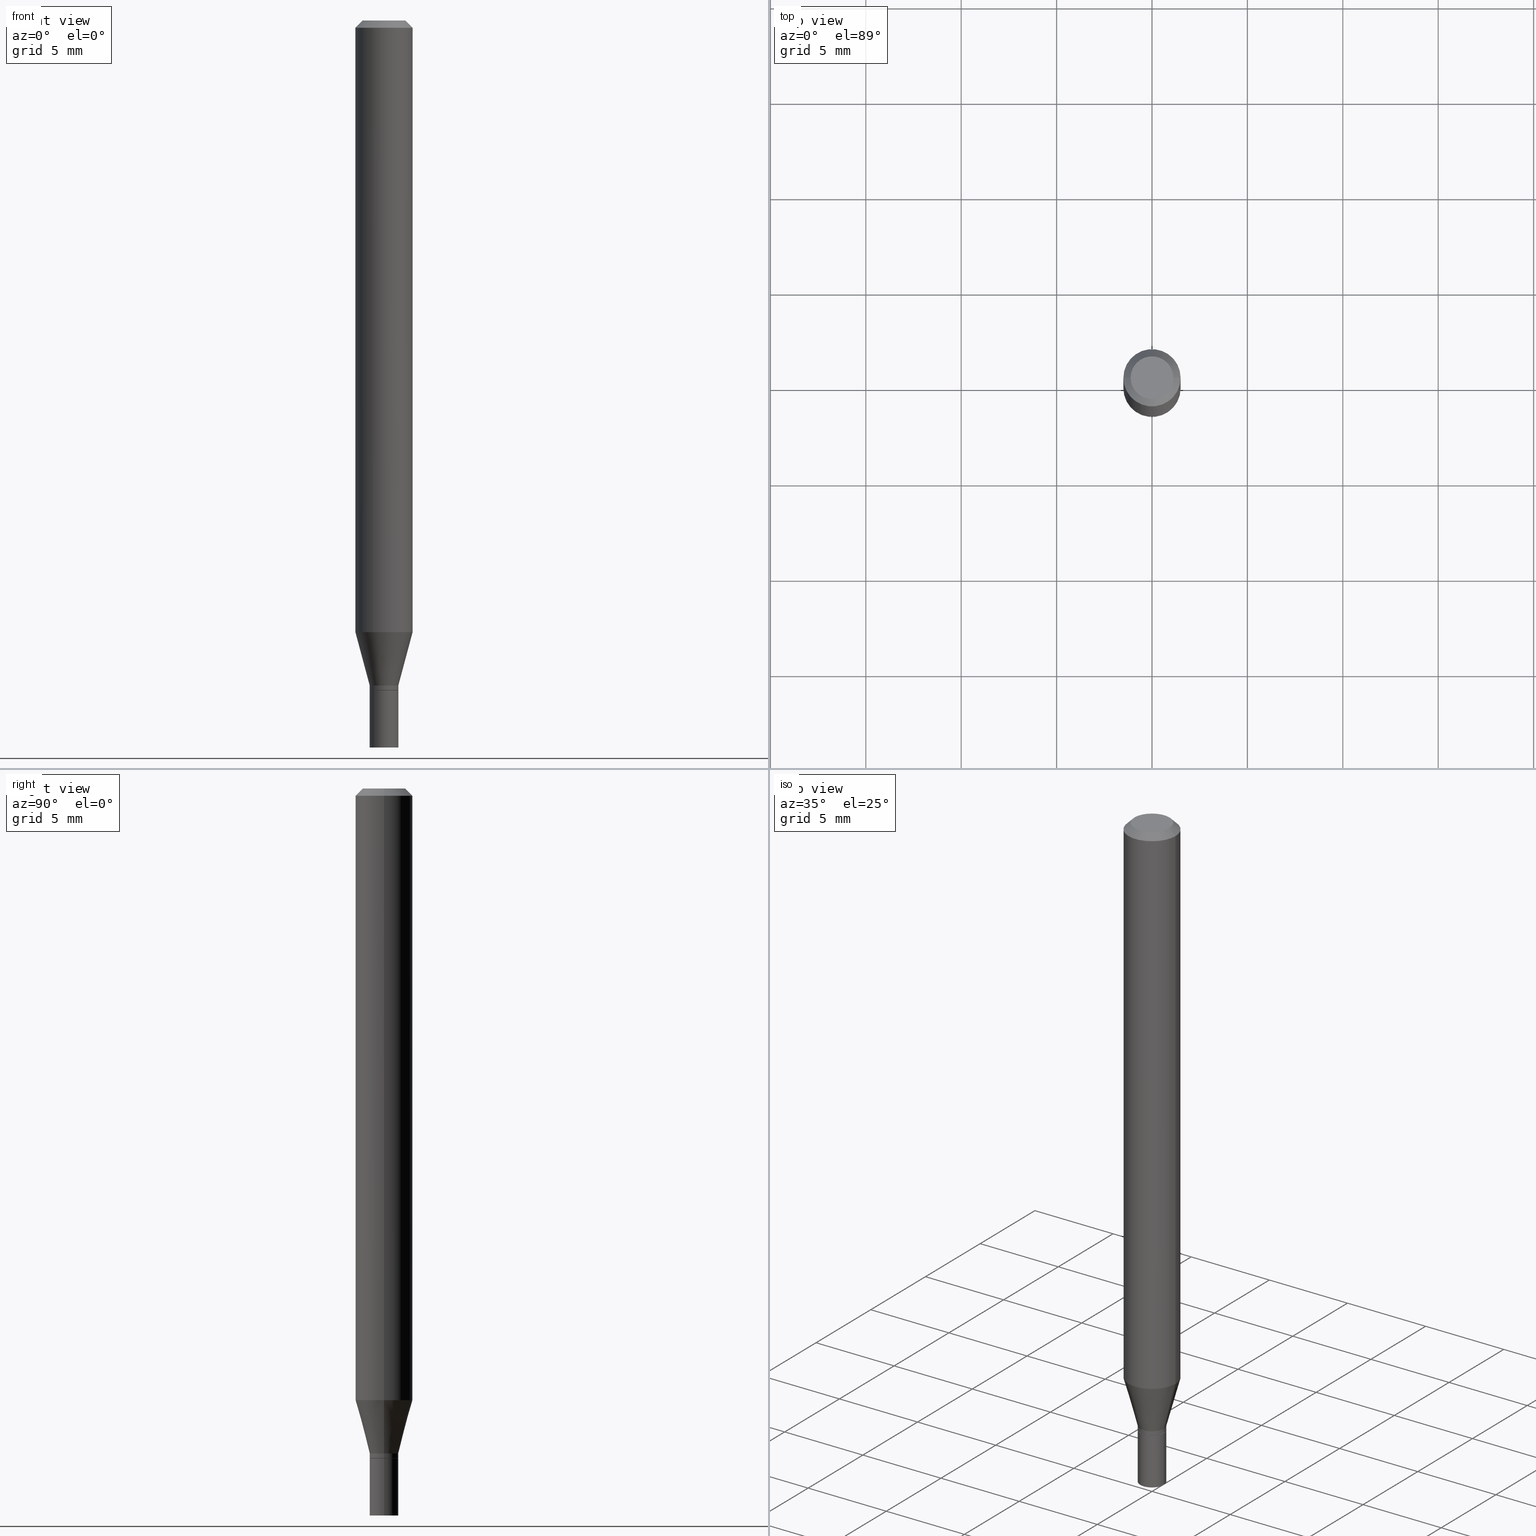
[diagram: canonical four-view strip — front | top / right | iso, engineering-drawing reading convention]
A machine part, canonical four-view strip (front | top / right | iso — engineering-drawing reading convention). The complete STEP part file that produces these views, byte-faithful:
ISO-10303-21;
HEADER;
FILE_DESCRIPTION (( 'STEP AP203' ),
    '1' );
FILE_NAME ('49158.STEP',
    '2024-03-12T19:59:11',
    ( '' ),
    ( '' ),
    'SwSTEP 2.0',
    'SolidWorks 2023',
    '' );
FILE_SCHEMA (( 'CONFIG_CONTROL_DESIGN' ));
ENDSEC;

DATA;
#1 = DIRECTION ( 'NONE',  ( -2.438088387897960049E-29, 3.491481338843145188E-15, 1.000000000000000000 ) ) ;
#2 = VERTEX_POINT ( 'NONE', #13 ) ;
#3 = CARTESIAN_POINT ( 'NONE',  ( 3.378170608864148213E-29, -4.823132321477921753E-15, -1.381400000000000183 ) ) ;
#4 = DIRECTION ( 'NONE',  ( -2.445468806185136597E-29, 3.491481338843145583E-15, 1.000000000000000000 ) ) ;
#5 = ORIENTED_EDGE ( 'NONE', *, *, #70, .T. ) ;
#6 = CALENDAR_DATE ( 2024, 12, 3 ) ;
#7 = DIRECTION ( 'NONE',  ( 1.000000000000000000, -6.982962677686281699E-15, 0.000000000000000000 ) ) ;
#8 = APPROVAL_ROLE ( '' ) ;
#9 = CARTESIAN_POINT ( 'NONE',  ( 3.379393343267239894E-29, -4.824878062147343257E-15, -1.381900000000000128 ) ) ;
#10 = ORIENTED_EDGE ( 'NONE', *, *, #68, .F. ) ;
#11 = CARTESIAN_POINT ( 'NONE',  ( 0.02904999999999999596, -5.027733127934129860E-15, -1.381900000000000128 ) ) ;
#12 = EDGE_CURVE ( 'NONE', #414, #122, #199, .T. ) ;
#13 = CARTESIAN_POINT ( 'NONE',  ( -0.02904999999999999596, -4.615816170234923596E-15, -1.381900000000000128 ) ) ;
#14 = ORIENTED_EDGE ( 'NONE', *, *, #361, .F. ) ;
#15 = DIRECTION ( 'NONE',  ( -2.445468806185136877E-29, 3.491481338843145188E-15, 1.000000000000000000 ) ) ;
#16 = PERSON ( 'UNSPECIFIED', 'UNSPECIFIED', 'UNSPECIFIED', ('UNSPECIFIED'), ('UNSPECIFIED'), ('UNSPECIFIED') ) ;
#17 = EDGE_CURVE ( 'NONE', #244, #338, #306, .T. ) ;
#18 = CONICAL_SURFACE ( 'NONE', #39, 0.02904999999999999596, 0.7853981633974739252 ) ;
#19 = LINE ( 'NONE', #339, #189 ) ;
#20 = EDGE_CURVE ( 'NONE', #338, #244, #374, .T. ) ;
#21 = CARTESIAN_POINT ( 'NONE',  ( 0.05905000000000000526, -4.123439461173741313E-16, 2.879382386107500571E-30 ) ) ;
#22 = ORIENTED_EDGE ( 'NONE', *, *, #302, .T. ) ;
#23 = CARTESIAN_POINT ( 'NONE',  ( 3.355183202086007133E-29, -4.790312396892795908E-15, -1.372000000000000108 ) ) ;
#24 = AXIS2_PLACEMENT_3D ( 'NONE', #23, #62, #420 ) ;
#25 = CARTESIAN_POINT ( 'NONE',  ( 0.05904999999999999832, -4.818259963378055761E-15, -1.261904501176718707 ) ) ;
#26 = APPROVAL_PERSON_ORGANIZATION ( #184, #369, #8 ) ;
#27 = EDGE_LOOP ( 'NONE', ( #284, #233, #463, #364 ) ) ;
#28 = CARTESIAN_POINT ( 'NONE',  ( -0.02954999999999999988, -4.821084656788921754E-15, -1.381900000000000128 ) ) ;
#29 = EDGE_CURVE ( 'NONE', #288, #414, #112, .T. ) ;
#30 = APPROVAL ( #362, 'UNSPECIFIED' ) ;
#31 = CIRCLE ( 'NONE', #287, 0.02954999999999992008 ) ;
#32 = COORDINATED_UNIVERSAL_TIME_OFFSET ( 5, 0, .BEHIND. ) ;
#33 = CC_DESIGN_PERSON_AND_ORGANIZATION_ASSIGNMENT ( #147, #37, ( #238 ) ) ;
#34 = ORIENTED_EDGE ( 'NONE', *, *, #295, .F. ) ;
#35 = DATE_TIME_ROLE ( 'classification_date' ) ;
#36 = ORIENTED_EDGE ( 'NONE', *, *, #380, .F. ) ;
#37 = PERSON_AND_ORGANIZATION_ROLE ( 'classification_officer' ) ;
#38 = EDGE_LOOP ( 'NONE', ( #357, #174, #75, #422 ) ) ;
#39 = AXIS2_PLACEMENT_3D ( 'NONE', #180, #455, #136 ) ;
#40 = APPROVAL_ROLE ( '' ) ;
#41 = CC_DESIGN_APPROVAL ( #30, ( #430 ) ) ;
#42 = DIRECTION ( 'NONE',  ( 2.438088387897960049E-29, -3.491481338843145188E-15, -1.000000000000000000 ) ) ;
#43 = VERTEX_POINT ( 'NONE', #227 ) ;
#44 = DIRECTION ( 'NONE',  ( -2.445468806185136877E-29, 3.491481338843145188E-15, 1.000000000000000000 ) ) ;
#45 = ADVANCED_FACE ( 'NONE', ( #297 ), #222, .T. ) ;
#46 = PERSON_AND_ORGANIZATION_ROLE ( 'creator' ) ;
#47 = CARTESIAN_POINT ( 'NONE',  ( -8.641182519006289553E-45, 1.233731848647591164E-30, 3.533548453838711334E-16 ) ) ;
#48 = CARTESIAN_POINT ( 'NONE',  ( -0.02954999999999991661, -4.283343775135014344E-15, -1.372000000000000108 ) ) ;
#49 = CARTESIAN_POINT ( 'NONE',  ( -0.05904999999999999832, -3.986340531794342137E-15, -1.261904501176718707 ) ) ;
#50 = DIRECTION ( 'NONE',  ( -2.445468806185136597E-29, 3.491481338843145583E-15, 1.000000000000000000 ) ) ;
#51 = EDGE_CURVE ( 'NONE', #355, #392, #243, .T. ) ;
#52 = ORIENTED_EDGE ( 'NONE', *, *, #380, .T. ) ;
#53 = DIRECTION ( 'NONE',  ( -2.445468806185136597E-29, 3.491481338843145583E-15, 1.000000000000000000 ) ) ;
#54 = CARTESIAN_POINT ( 'NONE',  ( -0.04404999999999999888, 3.337856159934041534E-16, 3.533548453838689148E-16 ) ) ;
#55 = EDGE_CURVE ( 'NONE', #146, #2, #177, .T. ) ;
#56 = CC_DESIGN_PERSON_AND_ORGANIZATION_ASSIGNMENT ( #286, #114, ( #58 ) ) ;
#57 = CONICAL_SURFACE ( 'NONE', #316, 0.02904999999999999596, 0.7853981633974739252 ) ;
#58 = PRODUCT_DEFINITION_FORMATION_WITH_SPECIFIED_SOURCE ( 'ANY', '', #88, .NOT_KNOWN. ) ;
#59 = DIRECTION ( 'NONE',  ( -2.445468806185136597E-29, 3.491481338843145583E-15, 1.000000000000000000 ) ) ;
#60 = ORIENTED_EDGE ( 'NONE', *, *, #280, .F. ) ;
#61 = PLANE ( 'NONE',  #176 ) ;
#62 = DIRECTION ( 'NONE',  ( -2.445468806185136597E-29, 3.491481338843145583E-15, 1.000000000000000000 ) ) ;
#63 = EDGE_LOOP ( 'NONE', ( #248, #34 ) ) ;
#64 = VECTOR ( 'NONE', #140, 39.37007874015748143 ) ;
#65 = LOCAL_TIME ( 15, 59, 11.00000000000000000, #109 ) ;
#66 = ORIENTED_EDGE ( 'NONE', *, *, #70, .F. ) ;
#67 = ORIENTED_EDGE ( 'NONE', *, *, #405, .T. ) ;
#68 = EDGE_CURVE ( 'NONE', #43, #241, #365, .T. ) ;
#69 = DIRECTION ( 'NONE',  ( 1.000000000000000000, -6.982962677686261977E-15, 0.000000000000000000 ) ) ;
#70 = EDGE_CURVE ( 'NONE', #43, #304, #465, .T. ) ;
#71 = AXIS2_PLACEMENT_3D ( 'NONE', #101, #131, #94 ) ;
#72 = EDGE_LOOP ( 'NONE', ( #211, #451, #106, #153 ) ) ;
#73 = LENGTH_MEASURE_WITH_UNIT ( LENGTH_MEASURE( 0.02539999999999999897 ), #120 );
#74 = ORIENTED_EDGE ( 'NONE', *, *, #17, .T. ) ;
#75 = ORIENTED_EDGE ( 'NONE', *, *, #427, .F. ) ;
#76 = APPLICATION_PROTOCOL_DEFINITION ( 'international standard', 'config_control_design', 1994, #160 ) ;
#77 = DIRECTION ( 'NONE',  ( -2.445468806185136597E-29, 3.491481338843145583E-15, 1.000000000000000000 ) ) ;
#78 = ADVANCED_BREP_SHAPE_REPRESENTATION ( '49158', ( #249, #102, #230 ), #232 ) ;
#79 = DIMENSIONAL_EXPONENTS ( 1.000000000000000000, 0.000000000000000000, 0.000000000000000000, 0.000000000000000000, 0.000000000000000000, 0.000000000000000000, 0.000000000000000000 ) ;
#80 = CONICAL_SURFACE ( 'NONE', #144, 0.02954999999999991661, 0.2617993877991512952 ) ;
#81 = DATE_AND_TIME ( #151, #65 ) ;
#82 = CARTESIAN_POINT ( 'NONE',  ( -0.02954999999999999988, 2.099653784171096041E-16, -1.453545319170324550E-30 ) ) ;
#83 = DIRECTION ( 'NONE',  ( 0.7071067811865656694, -2.468850131082446387E-15, 0.7071067811865294761 ) ) ;
#84 = ORIENTED_EDGE ( 'NONE', *, *, #198, .F. ) ;
#85 = DIRECTION ( 'NONE',  ( -2.445468806185136597E-29, 3.491481338843145583E-15, 1.000000000000000000 ) ) ;
#86 = ADVANCED_FACE ( 'NONE', ( #107 ), #18, .T. ) ;
#87 = DIRECTION ( 'NONE',  ( 1.000000000000000000, -6.982962677686261977E-15, 0.000000000000000000 ) ) ;
#88 = PRODUCT ( '49158', '49158', '', ( #212 ) ) ;
#89 = CIRCLE ( 'NONE', #372, 0.02954999999999999988 ) ;
#90 = AXIS2_PLACEMENT_3D ( 'NONE', #47, #368, #269 ) ;
#91 = VECTOR ( 'NONE', #299, 39.37007874015748854 ) ;
#92 = CARTESIAN_POINT ( 'NONE',  ( 0.02954999999999999988, -5.443568555390347787E-15, -1.500000000000000222 ) ) ;
#93 = ORIENTED_EDGE ( 'NONE', *, *, #68, .T. ) ;
#94 = DIRECTION ( 'NONE',  ( 1.000000000000000000, -6.982962677686273021E-15, 0.000000000000000000 ) ) ;
#95 = DIRECTION ( 'NONE',  ( -2.438088387897960049E-29, 3.491481338843145188E-15, 1.000000000000000000 ) ) ;
#96 = ORIENTED_EDGE ( 'NONE', *, *, #108, .F. ) ;
#97 = CLOSED_SHELL ( 'NONE', ( #352, #86, #45, #281, #132, #276, #461, #116, #215, #191, #207, #216 ) ) ;
#98 = AXIS2_PLACEMENT_3D ( 'NONE', #411, #363, #7 ) ;
#99 = DIRECTION ( 'NONE',  ( -2.445468806185136597E-29, 3.491481338843145583E-15, 1.000000000000000000 ) ) ;
#100 = ORIENTED_EDGE ( 'NONE', *, *, #385, .T. ) ;
#101 = CARTESIAN_POINT ( 'NONE',  ( 3.085948094012280841E-29, -4.405916017260681630E-15, -1.261904501176718707 ) ) ;
#102 = MANIFOLD_SOLID_BREP ( 'Body-Move/Copy2[2]', #97 ) ;
#103 = PRODUCT_DEFINITION_SHAPE ( 'NONE', 'NONE',  #430 ) ;
#104 = ORIENTED_EDGE ( 'NONE', *, *, #205, .T. ) ;
#105 = CARTESIAN_POINT ( 'NONE',  ( 0.02954999999999999988, -5.031224609272972078E-15, -1.381900000000000128 ) ) ;
#106 = ORIENTED_EDGE ( 'NONE', *, *, #351, .T. ) ;
#107 = FACE_OUTER_BOUND ( 'NONE', #27, .T. ) ;
#108 = EDGE_CURVE ( 'NONE', #2, #43, #273, .T. ) ;
#109 = COORDINATED_UNIVERSAL_TIME_OFFSET ( 5, 0, .BEHIND. ) ;
#110 = APPROVAL_PERSON_ORGANIZATION ( #394, #30, #40 ) ;
#111 = ORIENTED_EDGE ( 'NONE', *, *, #293, .T. ) ;
#112 = CIRCLE ( 'NONE', #428, 0.02954999999999999988 ) ;
#113 = VECTOR ( 'NONE', #141, 39.37007874015748143 ) ;
#114 = PERSON_AND_ORGANIZATION_ROLE ( 'design_supplier' ) ;
#115 = ORIENTED_EDGE ( 'NONE', *, *, #139, .F. ) ;
#116 = ADVANCED_FACE ( 'NONE', ( #260 ), #170, .T. ) ;
#117 = CARTESIAN_POINT ( 'NONE',  ( 0.02954999999999992008, -2.063465471256286244E-16, 1.440910237247695041E-30 ) ) ;
#118 = CC_DESIGN_PERSON_AND_ORGANIZATION_ASSIGNMENT ( #252, #424, ( #88 ) ) ;
#119 = ORIENTED_EDGE ( 'NONE', *, *, #51, .T. ) ;
#120 =( LENGTH_UNIT ( ) NAMED_UNIT ( * ) SI_UNIT ( $, .METRE. ) );
#121 = CARTESIAN_POINT ( 'NONE',  ( 3.379393343267239894E-29, -4.824878062147343257E-15, -1.381900000000000128 ) ) ;
#122 = VERTEX_POINT ( 'NONE', #28 ) ;
#123 = APPROVAL_PERSON_ORGANIZATION ( #353, #246, #437 ) ;
#124 = DATE_AND_TIME ( #6, #182 ) ;
#125 = CARTESIAN_POINT ( 'NONE',  ( 0.02954999999999991661, -4.996658944018425519E-15, -1.372000000000000108 ) ) ;
#126 = CARTESIAN_POINT ( 'NONE',  ( 3.668203209277705088E-31, -5.237222008264718399E-17, -0.01499999999999999944 ) ) ;
#127 = DIRECTION ( 'NONE',  ( 2.438088387897960049E-29, -3.491481338843145188E-15, -1.000000000000000000 ) ) ;
#128 = FACE_OUTER_BOUND ( 'NONE', #296, .T. ) ;
#129 = CONICAL_SURFACE ( 'NONE', #98, 0.02954999999999991661, 0.2617993877991512952 ) ;
#130 = EDGE_LOOP ( 'NONE', ( #377, #315, #425, #149 ) ) ;
#131 = DIRECTION ( 'NONE',  ( -2.445468806185136597E-29, 3.491481338843145583E-15, 1.000000000000000000 ) ) ;
#132 = ADVANCED_FACE ( 'NONE', ( #335 ), #80, .T. ) ;
#133 = CARTESIAN_POINT ( 'NONE',  ( 0.05905000000000001914, -4.647161662000214077E-16, -0.01499999999999999944 ) ) ;
#134 = COORDINATED_UNIVERSAL_TIME_OFFSET ( 5, 0, .BEHIND. ) ;
#135 = CARTESIAN_POINT ( 'NONE',  ( 3.378170608864148213E-29, -4.823132321477921753E-15, -1.381400000000000183 ) ) ;
#136 = DIRECTION ( 'NONE',  ( 1.000000000000000000, -6.982962677686278543E-15, 0.000000000000000000 ) ) ;
#137 = CARTESIAN_POINT ( 'NONE',  ( 3.576687321579069994E-29, -5.368277968210015545E-15, -1.500000000000000222 ) ) ;
#138 = EDGE_LOOP ( 'NONE', ( #462, #100 ) ) ;
#139 = EDGE_CURVE ( 'NONE', #221, #360, #423, .T. ) ;
#140 = DIRECTION ( 'NONE',  ( -0.7071067811865656694, 7.493145998870420424E-15, 0.7071067811865294761 ) ) ;
#141 = DIRECTION ( 'NONE',  ( -0.7071067811865396902, 2.468850131082174625E-15, -0.7071067811865553443 ) ) ;
#142 = DIRECTION ( 'NONE',  ( 1.000000000000000000, -6.982962677686280910E-15, 0.000000000000000000 ) ) ;
#143 = AXIS2_PLACEMENT_3D ( 'NONE', #290, #42, #161 ) ;
#144 = AXIS2_PLACEMENT_3D ( 'NONE', #169, #190, #375 ) ;
#145 = CC_DESIGN_PERSON_AND_ORGANIZATION_ASSIGNMENT ( #366, #46, ( #430 ) ) ;
#146 = VERTEX_POINT ( 'NONE', #234 ) ;
#147 = PERSON_AND_ORGANIZATION ( #16, #346 ) ;
#148 = CIRCLE ( 'NONE', #348, 0.02954999999999999988 ) ;
#149 = ORIENTED_EDGE ( 'NONE', *, *, #450, .F. ) ;
#150 = AXIS2_PLACEMENT_3D ( 'NONE', #229, #85, #262 ) ;
#151 = CALENDAR_DATE ( 2024, 12, 3 ) ;
#152 = LINE ( 'NONE', #231, #91 ) ;
#153 = ORIENTED_EDGE ( 'NONE', *, *, #385, .F. ) ;
#154 = CARTESIAN_POINT ( 'NONE',  ( 0.000000000000000000, 0.000000000000000000, 0.000000000000000000 ) ) ;
#155 = PLANE ( 'NONE',  #143 ) ;
#156 = ORIENTED_EDGE ( 'NONE', *, *, #433, .F. ) ;
#157 = CARTESIAN_POINT ( 'NONE',  ( 3.379393343267239894E-29, -4.824878062147343257E-15, -1.381900000000000128 ) ) ;
#158 = DATE_TIME_ROLE ( 'creation_date' ) ;
#159 = ADVANCED_FACE ( 'NONE', ( #328 ), #155, .F. ) ;
#160 = APPLICATION_CONTEXT ( 'configuration controlled 3d designs of mechanical parts and assemblies' ) ;
#161 = DIRECTION ( 'NONE',  ( -1.000000000000000000, 6.982962677686265922E-15, -4.876176775795935793E-29 ) ) ;
#162 = CC_DESIGN_APPROVAL ( #369, ( #238 ) ) ;
#163 = CALENDAR_DATE ( 2024, 12, 3 ) ;
#164 = CARTESIAN_POINT ( 'NONE',  ( 0.04404999999999999888, -3.798447818264455642E-16, 3.533548453838735986E-16 ) ) ;
#165 = ORIENTED_EDGE ( 'NONE', *, *, #29, .T. ) ;
#166 = DIRECTION ( 'NONE',  ( -2.445468806185136877E-29, 3.491481338843145188E-15, 1.000000000000000000 ) ) ;
#167 = ORIENTED_EDGE ( 'NONE', *, *, #415, .F. ) ;
#168 = FACE_OUTER_BOUND ( 'NONE', #72, .T. ) ;
#169 = CARTESIAN_POINT ( 'NONE',  ( 3.355183202086007133E-29, -4.790312396892795908E-15, -1.372000000000000108 ) ) ;
#170 = CONICAL_SURFACE ( 'NONE', #342, 0.05905000000000001914, 0.7853981633974372878 ) ;
#171 = CARTESIAN_POINT ( 'NONE',  ( 0.02954999999999992008, -5.029478868603550575E-15, -1.381400000000000183 ) ) ;
#172 = DATE_AND_TIME ( #163, #354 ) ;
#173 = DIRECTION ( 'NONE',  ( -2.445468806185136877E-29, 3.491481338843145188E-15, 1.000000000000000000 ) ) ;
#174 = ORIENTED_EDGE ( 'NONE', *, *, #361, .T. ) ;
#175 = DIRECTION ( 'NONE',  ( 0.7071067811865396902, -7.319954787623229224E-15, -0.7071067811865553443 ) ) ;
#176 = AXIS2_PLACEMENT_3D ( 'NONE', #137, #95, #270 ) ;
#177 = CIRCLE ( 'NONE', #324, 0.02904999999999999596 ) ;
#178 = VECTOR ( 'NONE', #166, 39.37007874015748143 ) ;
#179 = DIRECTION ( 'NONE',  ( -2.445468806185136877E-29, 3.491481338843145188E-15, 1.000000000000000000 ) ) ;
#180 = CARTESIAN_POINT ( 'NONE',  ( 3.379393343267239894E-29, -4.824878062147343257E-15, -1.381900000000000128 ) ) ;
#181 = ORIENTED_EDGE ( 'NONE', *, *, #450, .T. ) ;
#182 = LOCAL_TIME ( 15, 59, 11.00000000000000000, #32 ) ;
#183 =( CONVERSION_BASED_UNIT ( 'INCH', #73 ) LENGTH_UNIT ( ) NAMED_UNIT ( #79 ) );
#184 = PERSON_AND_ORGANIZATION ( #16, #346 ) ;
#185 = EDGE_LOOP ( 'NONE', ( #165, #219, #84, #349 ) ) ;
#186 = APPROVAL_STATUS ( 'not_yet_approved' ) ;
#187 = ORIENTED_EDGE ( 'NONE', *, *, #17, .F. ) ;
#188 = AXIS2_PLACEMENT_3D ( 'NONE', #126, #436, #259 ) ;
#189 = VECTOR ( 'NONE', #15, 39.37007874015748143 ) ;
#190 = DIRECTION ( 'NONE',  ( -2.445468806185136597E-29, 3.491481338843145583E-15, 1.000000000000000000 ) ) ;
#191 = ADVANCED_FACE ( 'NONE', ( #194 ), #439, .F. ) ;
#192 = FACE_OUTER_BOUND ( 'NONE', #185, .T. ) ;
#193 = CARTESIAN_POINT ( 'NONE',  ( 3.668203209277705088E-31, -5.237222008264718399E-17, -0.01499999999999999944 ) ) ;
#194 = FACE_OUTER_BOUND ( 'NONE', #314, .T. ) ;
#195 = VECTOR ( 'NONE', #343, 39.37007874015748854 ) ;
#196 = FACE_OUTER_BOUND ( 'NONE', #326, .T. ) ;
#197 = DIRECTION ( 'NONE',  ( -2.445468806185136597E-29, 3.491481338843145583E-15, 1.000000000000000000 ) ) ;
#198 = EDGE_CURVE ( 'NONE', #321, #122, #201, .T. ) ;
#199 = LINE ( 'NONE', #82, #410 ) ;
#200 = DIRECTION ( 'NONE',  ( 1.000000000000000000, -6.982962677686278543E-15, 0.000000000000000000 ) ) ;
#201 = CIRCLE ( 'NONE', #382, 0.02954999999999999988 ) ;
#202 = APPROVAL_DATE_TIME ( #172, #369 ) ;
#203 = CIRCLE ( 'NONE', #391, 0.05905000000000001914 ) ;
#204 = DIRECTION ( 'NONE',  ( 1.000000000000000000, -6.982962677686280910E-15, 0.000000000000000000 ) ) ;
#205 = EDGE_CURVE ( 'NONE', #146, #304, #434, .T. ) ;
#206 = DIRECTION ( 'NONE',  ( -2.445468806185136597E-29, 3.491481338843145583E-15, 1.000000000000000000 ) ) ;
#207 = ADVANCED_FACE ( 'NONE', ( #294 ), #57, .T. ) ;
#208 = LINE ( 'NONE', #345, #317 ) ;
#209 = VECTOR ( 'NONE', #175, 39.37007874015748143 ) ;
#210 = ORIENTED_EDGE ( 'NONE', *, *, #433, .T. ) ;
#211 = ORIENTED_EDGE ( 'NONE', *, *, #12, .F. ) ;
#212 = MECHANICAL_CONTEXT ( 'NONE', #160, 'mechanical' ) ;
#213 = CIRCLE ( 'NONE', #24, 0.02954999999999991661 ) ;
#214 = DATE_AND_TIME ( #330, #285 ) ;
#215 = ADVANCED_FACE ( 'NONE', ( #196 ), #226, .F. ) ;
#216 = ADVANCED_FACE ( 'NONE', ( #128 ), #407, .T. ) ;
#217 = DIRECTION ( 'NONE',  ( -2.445468806185136597E-29, 3.491481338843145583E-15, 1.000000000000000000 ) ) ;
#218 = CARTESIAN_POINT ( 'NONE',  ( 3.668203209277705088E-31, -5.237222008264718399E-17, -0.01499999999999999944 ) ) ;
#219 = ORIENTED_EDGE ( 'NONE', *, *, #12, .T. ) ;
#220 = DIRECTION ( 'NONE',  ( 1.000000000000000000, -6.982962677686266711E-15, 0.000000000000000000 ) ) ;
#221 = VERTEX_POINT ( 'NONE', #49 ) ;
#222 = CONICAL_SURFACE ( 'NONE', #188, 0.05905000000000001914, 0.7853981633974372878 ) ;
#223 = DIRECTION ( 'NONE',  ( 1.000000000000000000, -6.982962677686278543E-15, 0.000000000000000000 ) ) ;
#224 = APPROVAL_DATE_TIME ( #81, #30 ) ;
#225 = DIRECTION ( 'NONE',  ( -2.445468806185136877E-29, 3.491481338843145188E-15, 1.000000000000000000 ) ) ;
#226 = PLANE ( 'NONE',  #254 ) ;
#227 = CARTESIAN_POINT ( 'NONE',  ( -0.02954999999999992008, -4.613166943060813184E-15, -1.381400000000000183 ) ) ;
#228 = UNCERTAINTY_MEASURE_WITH_UNIT (LENGTH_MEASURE( 1.000000000000000082E-05 ), #183, 'distance_accuracy_value', 'NONE');
#229 = CARTESIAN_POINT ( 'NONE',  ( 0.000000000000000000, 0.000000000000000000, 0.000000000000000000 ) ) ;
#230 = AXIS2_PLACEMENT_3D ( 'NONE', #154, #429, #398 ) ;
#231 = CARTESIAN_POINT ( 'NONE',  ( 0.02954999999999991661, -4.996658944018425519E-15, -1.372000000000000108 ) ) ;
#232 =( GEOMETRIC_REPRESENTATION_CONTEXT ( 3 ) GLOBAL_UNCERTAINTY_ASSIGNED_CONTEXT ( ( #228 ) ) GLOBAL_UNIT_ASSIGNED_CONTEXT ( ( #183, #393, #466 ) ) REPRESENTATION_CONTEXT ( 'NONE', 'WORKASPACE' ) );
#233 = ORIENTED_EDGE ( 'NONE', *, *, #108, .T. ) ;
#234 = CARTESIAN_POINT ( 'NONE',  ( 0.02904999999999999596, -5.027733127934129860E-15, -1.381900000000000128 ) ) ;
#235 = DIRECTION ( 'NONE',  ( 1.000000000000000000, -6.982962677686261977E-15, 0.000000000000000000 ) ) ;
#236 = CYLINDRICAL_SURFACE ( 'NONE', #272, 0.02954999999999999988 ) ;
#237 = AXIS2_PLACEMENT_3D ( 'NONE', #431, #261, #255 ) ;
#238 = SECURITY_CLASSIFICATION ( '', '', #459 ) ;
#239 = CARTESIAN_POINT ( 'NONE',  ( -0.05905000000000002608, -1.809568633205325453E-15, -0.01499999999999999944 ) ) ;
#240 = CYLINDRICAL_SURFACE ( 'NONE', #383, 0.02954999999999992008 ) ;
#241 = VERTEX_POINT ( 'NONE', #48 ) ;
#242 = LINE ( 'NONE', #452, #195 ) ;
#243 = CIRCLE ( 'NONE', #333, 0.05905000000000001914 ) ;
#244 = VERTEX_POINT ( 'NONE', #164 ) ;
#245 = CALENDAR_DATE ( 2024, 12, 3 ) ;
#246 = APPROVAL ( #186, 'UNSPECIFIED' ) ;
#247 = ORIENTED_EDGE ( 'NONE', *, *, #405, .F. ) ;
#248 = ORIENTED_EDGE ( 'NONE', *, *, #29, .F. ) ;
#249 = MANIFOLD_SOLID_BREP ( 'Body-Move/Copy2[1]', #389 ) ;
#250 = DIRECTION ( 'NONE',  ( -2.445468806185136597E-29, 3.491481338843145583E-15, 1.000000000000000000 ) ) ;
#251 = DIRECTION ( 'NONE',  ( -2.445468806185136597E-29, 3.491481338843145583E-15, 1.000000000000000000 ) ) ;
#252 = PERSON_AND_ORGANIZATION ( #16, #346 ) ;
#253 = DIRECTION ( 'NONE',  ( 2.445468806185136597E-29, -3.491481338843145583E-15, -1.000000000000000000 ) ) ;
#254 = AXIS2_PLACEMENT_3D ( 'NONE', #258, #127, #367 ) ;
#255 = DIRECTION ( 'NONE',  ( 1.000000000000000000, -6.982962677686266711E-15, 4.876176775795935232E-29 ) ) ;
#256 = VERTEX_POINT ( 'NONE', #125 ) ;
#257 = APPROVAL_DATE_TIME ( #124, #246 ) ;
#258 = CARTESIAN_POINT ( 'NONE',  ( 3.075995059520799729E-16, 0.04404999999999999888, 2.287766971589501637E-17 ) ) ;
#259 = DIRECTION ( 'NONE',  ( -1.000000000000000000, 6.982962677686266711E-15, 0.000000000000000000 ) ) ;
#260 = FACE_OUTER_BOUND ( 'NONE', #460, .T. ) ;
#261 = DIRECTION ( 'NONE',  ( -2.445468806185136597E-29, 3.491481338843145583E-15, 1.000000000000000000 ) ) ;
#262 = DIRECTION ( 'NONE',  ( 1.000000000000000000, -6.982962677686267499E-15, 4.876176775795936353E-29 ) ) ;
#263 = AXIS2_PLACEMENT_3D ( 'NONE', #3, #292, #142 ) ;
#264 = AXIS2_PLACEMENT_3D ( 'NONE', #388, #417, #384 ) ;
#265 = ORIENTED_EDGE ( 'NONE', *, *, #20, .T. ) ;
#266 = CARTESIAN_POINT ( 'NONE',  ( 0.000000000000000000, 0.000000000000000000, 0.000000000000000000 ) ) ;
#267 = LINE ( 'NONE', #421, #113 ) ;
#268 = ADVANCED_FACE ( 'NONE', ( #192 ), #301, .T. ) ;
#269 = DIRECTION ( 'NONE',  ( 1.000000000000000000, -6.982962677686265922E-15, 4.819687581474398999E-29 ) ) ;
#270 = DIRECTION ( 'NONE',  ( 1.000000000000000000, -6.982962677686265922E-15, 4.876176775795935793E-29 ) ) ;
#271 = DIRECTION ( 'NONE',  ( -1.000000000000000000, 6.982962677686266711E-15, 0.000000000000000000 ) ) ;
#272 = AXIS2_PLACEMENT_3D ( 'NONE', #266, #305, #416 ) ;
#273 = LINE ( 'NONE', #453, #64 ) ;
#274 = CARTESIAN_POINT ( 'NONE',  ( 3.379393343267239894E-29, -4.824878062147343257E-15, -1.381900000000000128 ) ) ;
#275 = DIRECTION ( 'NONE',  ( -2.445468806185136597E-29, 3.491481338843145583E-15, 1.000000000000000000 ) ) ;
#276 = ADVANCED_FACE ( 'NONE', ( #337 ), #129, .T. ) ;
#277 = EDGE_CURVE ( 'NONE', #256, #360, #152, .T. ) ;
#278 = VECTOR ( 'NONE', #44, 39.37007874015748143 ) ;
#279 = ORIENTED_EDGE ( 'NONE', *, *, #139, .T. ) ;
#280 = EDGE_CURVE ( 'NONE', #304, #256, #325, .T. ) ;
#281 = ADVANCED_FACE ( 'NONE', ( #303 ), #441, .T. ) ;
#282 = COORDINATED_UNIVERSAL_TIME_OFFSET ( 5, 0, .BEHIND. ) ;
#283 = EDGE_LOOP ( 'NONE', ( #22, #93, #167, #60 ) ) ;
#284 = ORIENTED_EDGE ( 'NONE', *, *, #55, .T. ) ;
#285 = LOCAL_TIME ( 15, 59, 11.00000000000000000, #298 ) ;
#286 = PERSON_AND_ORGANIZATION ( #16, #346 ) ;
#287 = AXIS2_PLACEMENT_3D ( 'NONE', #135, #99, #204 ) ;
#288 = VERTEX_POINT ( 'NONE', #92 ) ;
#289 = DIRECTION ( 'NONE',  ( -2.445468806185136597E-29, 3.491481338843145583E-15, 1.000000000000000000 ) ) ;
#290 = CARTESIAN_POINT ( 'NONE',  ( 2.063465471256629645E-16, 0.02954999999999517735, -1.381900000000000128 ) ) ;
#291 = EDGE_LOOP ( 'NONE', ( #187, #67, #119, #458 ) ) ;
#292 = DIRECTION ( 'NONE',  ( -2.445468806185136597E-29, 3.491481338843145583E-15, 1.000000000000000000 ) ) ;
#293 = EDGE_CURVE ( 'NONE', #392, #355, #203, .T. ) ;
#294 = FACE_OUTER_BOUND ( 'NONE', #390, .T. ) ;
#295 = EDGE_CURVE ( 'NONE', #414, #288, #89, .T. ) ;
#296 = EDGE_LOOP ( 'NONE', ( #10, #5, #350, #36 ) ) ;
#297 = FACE_OUTER_BOUND ( 'NONE', #291, .T. ) ;
#298 = COORDINATED_UNIVERSAL_TIME_OFFSET ( 5, 0, .BEHIND. ) ;
#299 = DIRECTION ( 'NONE',  ( 0.2588190451025225713, 1.565188264969612304E-15, 0.9659258262890678681 ) ) ;
#300 = LOCAL_TIME ( 15, 59, 11.00000000000000000, #282 ) ;
#301 = CYLINDRICAL_SURFACE ( 'NONE', #376, 0.02954999999999999988 ) ;
#302 = EDGE_CURVE ( 'NONE', #304, #43, #31, .T. ) ;
#303 = FACE_OUTER_BOUND ( 'NONE', #130, .T. ) ;
#304 = VERTEX_POINT ( 'NONE', #171 ) ;
#305 = DIRECTION ( 'NONE',  ( -2.445468806185136597E-29, 3.491481338843145583E-15, 1.000000000000000000 ) ) ;
#306 = CIRCLE ( 'NONE', #90, 0.04404999999999999888 ) ;
#307 = CARTESIAN_POINT ( 'NONE',  ( 3.668203209277704895E-29, -5.237222008264718177E-15, -1.500000000000000222 ) ) ;
#308 = CC_DESIGN_DATE_AND_TIME_ASSIGNMENT ( #214, #158, ( #430 ) ) ;
#309 = FACE_OUTER_BOUND ( 'NONE', #63, .T. ) ;
#310 = CARTESIAN_POINT ( 'NONE',  ( 0.05905000000000001914, -4.574846268510562433E-16, -0.01499999999999999944 ) ) ;
#311 = CIRCLE ( 'NONE', #71, 0.05904999999999999832 ) ;
#312 = DIRECTION ( 'NONE',  ( -2.445468806185136597E-29, 3.491481338843145583E-15, 1.000000000000000000 ) ) ;
#313 = FACE_OUTER_BOUND ( 'NONE', #435, .T. ) ;
#314 = EDGE_LOOP ( 'NONE', ( #432, #156 ) ) ;
#315 = ORIENTED_EDGE ( 'NONE', *, *, #443, .T. ) ;
#316 = AXIS2_PLACEMENT_3D ( 'NONE', #121, #50, #370 ) ;
#317 = VECTOR ( 'NONE', #179, 39.37007874015748143 ) ;
#318 = ADVANCED_FACE ( 'NONE', ( #309 ), #61, .F. ) ;
#319 = ORIENTED_EDGE ( 'NONE', *, *, #20, .F. ) ;
#320 = PERSON_AND_ORGANIZATION_ROLE ( 'creator' ) ;
#321 = VERTEX_POINT ( 'NONE', #105 ) ;
#322 = DIRECTION ( 'NONE',  ( 1.000000000000000000, -6.982962677686267499E-15, 4.876176775795936353E-29 ) ) ;
#323 = ORIENTED_EDGE ( 'NONE', *, *, #293, .F. ) ;
#324 = AXIS2_PLACEMENT_3D ( 'NONE', #157, #251, #223 ) ;
#325 = LINE ( 'NONE', #117, #178 ) ;
#326 = EDGE_LOOP ( 'NONE', ( #265, #74 ) ) ;
#327 = CARTESIAN_POINT ( 'NONE',  ( -0.02954999999999992008, 2.099653784171090371E-16, -1.453545319170320697E-30 ) ) ;
#328 = FACE_OUTER_BOUND ( 'NONE', #138, .T. ) ;
#329 = DIRECTION ( 'NONE',  ( 1.000000000000000000, -6.982962677686266711E-15, 0.000000000000000000 ) ) ;
#330 = CALENDAR_DATE ( 2024, 12, 3 ) ;
#331 = CARTESIAN_POINT ( 'NONE',  ( 0.000000000000000000, 0.000000000000000000, 0.000000000000000000 ) ) ;
#332 = DIRECTION ( 'NONE',  ( -2.445468806185136597E-29, 3.491481338843145583E-15, 1.000000000000000000 ) ) ;
#333 = AXIS2_PLACEMENT_3D ( 'NONE', #193, #332, #329 ) ;
#334 = CARTESIAN_POINT ( 'NONE',  ( 3.085948094012280841E-29, -4.405916017260681630E-15, -1.261904501176718707 ) ) ;
#335 = FACE_OUTER_BOUND ( 'NONE', #38, .T. ) ;
#336 = ORIENTED_EDGE ( 'NONE', *, *, #277, .T. ) ;
#337 = FACE_OUTER_BOUND ( 'NONE', #404, .T. ) ;
#338 = VERTEX_POINT ( 'NONE', #54 ) ;
#339 = CARTESIAN_POINT ( 'NONE',  ( 0.02954999999999999988, -2.063465471256291914E-16, 1.440910237247699070E-30 ) ) ;
#340 = APPLICATION_CONTEXT ( 'configuration controlled 3d designs of mechanical parts and assemblies' ) ;
#341 = LINE ( 'NONE', #21, #464 ) ;
#342 = AXIS2_PLACEMENT_3D ( 'NONE', #218, #253, #271 ) ;
#343 = DIRECTION ( 'NONE',  ( -0.2588190451025225713, 5.211531920934557353E-15, 0.9659258262890678681 ) ) ;
#344 = LINE ( 'NONE', #310, #209 ) ;
#345 = CARTESIAN_POINT ( 'NONE',  ( -0.05905000000000000526, 4.195754854663391971E-16, -2.904631170795522242E-30 ) ) ;
#346 = ORGANIZATION ( 'UNSPECIFIED', 'UNSPECIFIED', '' ) ;
#347 = CC_DESIGN_DATE_AND_TIME_ASSIGNMENT ( #356, #35, ( #238 ) ) ;
#348 = AXIS2_PLACEMENT_3D ( 'NONE', #274, #197, #235 ) ;
#349 = ORIENTED_EDGE ( 'NONE', *, *, #351, .F. ) ;
#350 = ORIENTED_EDGE ( 'NONE', *, *, #280, .T. ) ;
#351 = EDGE_CURVE ( 'NONE', #288, #321, #19, .T. ) ;
#352 = ADVANCED_FACE ( 'NONE', ( #418 ), #240, .T. ) ;
#353 = PERSON_AND_ORGANIZATION ( #16, #346 ) ;
#354 = LOCAL_TIME ( 15, 59, 11.00000000000000000, #134 ) ;
#355 = VERTEX_POINT ( 'NONE', #133 ) ;
#356 = DATE_AND_TIME ( #245, #300 ) ;
#357 = ORIENTED_EDGE ( 'NONE', *, *, #415, .T. ) ;
#358 = PERSON_AND_ORGANIZATION ( #16, #346 ) ;
#359 = EDGE_CURVE ( 'NONE', #338, #392, #267, .T. ) ;
#360 = VERTEX_POINT ( 'NONE', #25 ) ;
#361 = EDGE_CURVE ( 'NONE', #241, #221, #242, .T. ) ;
#362 = APPROVAL_STATUS ( 'not_yet_approved' ) ;
#363 = DIRECTION ( 'NONE',  ( -2.445468806185136597E-29, 3.491481338843145583E-15, 1.000000000000000000 ) ) ;
#364 = ORIENTED_EDGE ( 'NONE', *, *, #205, .F. ) ;
#365 = LINE ( 'NONE', #327, #278 ) ;
#366 = PERSON_AND_ORGANIZATION ( #16, #346 ) ;
#367 = DIRECTION ( 'NONE',  ( -1.000000000000000000, 6.982962677686265922E-15, -4.876176775795935793E-29 ) ) ;
#368 = DIRECTION ( 'NONE',  ( -2.445468806185136597E-29, 3.491481338843145583E-15, 1.000000000000000000 ) ) ;
#369 = APPROVAL ( #371, 'UNSPECIFIED' ) ;
#370 = DIRECTION ( 'NONE',  ( 1.000000000000000000, -6.982962677686278543E-15, 0.000000000000000000 ) ) ;
#371 = APPROVAL_STATUS ( 'not_yet_approved' ) ;
#372 = AXIS2_PLACEMENT_3D ( 'NONE', #307, #275, #448 ) ;
#373 = DIRECTION ( 'NONE',  ( 1.000000000000000000, -6.982962677686265922E-15, 4.819687581474398999E-29 ) ) ;
#374 = CIRCLE ( 'NONE', #445, 0.04404999999999999888 ) ;
#375 = DIRECTION ( 'NONE',  ( 1.000000000000000000, -6.982962677686281699E-15, 0.000000000000000000 ) ) ;
#376 = AXIS2_PLACEMENT_3D ( 'NONE', #331, #250, #408 ) ;
#377 = ORIENTED_EDGE ( 'NONE', *, *, #427, .T. ) ;
#378 = CARTESIAN_POINT ( 'NONE',  ( 3.379393343267239894E-29, -4.824878062147343257E-15, -1.381900000000000128 ) ) ;
#379 = CARTESIAN_POINT ( 'NONE',  ( 3.379393343267239894E-29, -4.824878062147343257E-15, -1.381900000000000128 ) ) ;
#380 = EDGE_CURVE ( 'NONE', #241, #256, #457, .T. ) ;
#381 = CARTESIAN_POINT ( 'NONE',  ( -0.02954999999999999988, -4.821084656788921754E-15, -1.500000000000000222 ) ) ;
#382 = AXIS2_PLACEMENT_3D ( 'NONE', #9, #53, #87 ) ;
#383 = AXIS2_PLACEMENT_3D ( 'NONE', #386, #206, #446 ) ;
#384 = DIRECTION ( 'NONE',  ( 1.000000000000000000, -6.982962677686281699E-15, 0.000000000000000000 ) ) ;
#385 = EDGE_CURVE ( 'NONE', #122, #321, #148, .T. ) ;
#386 = CARTESIAN_POINT ( 'NONE',  ( 0.000000000000000000, 0.000000000000000000, 0.000000000000000000 ) ) ;
#387 = PRODUCT_RELATED_PRODUCT_CATEGORY ( 'detail', '', ( #88 ) ) ;
#388 = CARTESIAN_POINT ( 'NONE',  ( 3.355183202086007133E-29, -4.790312396892795908E-15, -1.372000000000000108 ) ) ;
#389 = CLOSED_SHELL ( 'NONE', ( #268, #318, #395, #159 ) ) ;
#390 = EDGE_LOOP ( 'NONE', ( #96, #210, #104, #66 ) ) ;
#391 = AXIS2_PLACEMENT_3D ( 'NONE', #399, #77, #220 ) ;
#392 = VERTEX_POINT ( 'NONE', #239 ) ;
#393 =( NAMED_UNIT ( * ) PLANE_ANGLE_UNIT ( ) SI_UNIT ( $, .RADIAN. ) );
#394 = PERSON_AND_ORGANIZATION ( #16, #346 ) ;
#395 = ADVANCED_FACE ( 'NONE', ( #168 ), #236, .T. ) ;
#396 = CC_DESIGN_PERSON_AND_ORGANIZATION_ASSIGNMENT ( #358, #320, ( #58 ) ) ;
#397 = CARTESIAN_POINT ( 'NONE',  ( -8.641182519006289553E-45, 1.233731848647591164E-30, 3.533548453838711334E-16 ) ) ;
#398 = DIRECTION ( 'NONE',  ( 1.000000000000000000, 0.000000000000000000, 0.000000000000000000 ) ) ;
#399 = CARTESIAN_POINT ( 'NONE',  ( 3.668203209277705088E-31, -5.237222008264718399E-17, -0.01499999999999999944 ) ) ;
#400 = APPLICATION_PROTOCOL_DEFINITION ( 'international standard', 'config_control_design', 1994, #340 ) ;
#401 = AXIS2_PLACEMENT_3D ( 'NONE', #378, #1, #440 ) ;
#402 = AXIS2_PLACEMENT_3D ( 'NONE', #334, #4, #403 ) ;
#403 = DIRECTION ( 'NONE',  ( 1.000000000000000000, -6.982962677686273021E-15, 0.000000000000000000 ) ) ;
#404 = EDGE_LOOP ( 'NONE', ( #14, #52, #336, #115 ) ) ;
#405 = EDGE_CURVE ( 'NONE', #244, #355, #344, .T. ) ;
#406 = DESIGN_CONTEXT ( 'detailed design', #340, 'design' ) ;
#407 = CYLINDRICAL_SURFACE ( 'NONE', #237, 0.02954999999999992008 ) ;
#408 = DIRECTION ( 'NONE',  ( 1.000000000000000000, -6.982962677686266711E-15, 4.876176775795935793E-29 ) ) ;
#409 = AXIS2_PLACEMENT_3D ( 'NONE', #379, #59, #200 ) ;
#410 = VECTOR ( 'NONE', #225, 39.37007874015748143 ) ;
#411 = CARTESIAN_POINT ( 'NONE',  ( 3.355183202086007133E-29, -4.790312396892795908E-15, -1.372000000000000108 ) ) ;
#412 = AXIS2_PLACEMENT_3D ( 'NONE', #454, #217, #322 ) ;
#413 = CARTESIAN_POINT ( 'NONE',  ( 3.668203209277704895E-29, -5.237222008264718177E-15, -1.500000000000000222 ) ) ;
#414 = VERTEX_POINT ( 'NONE', #381 ) ;
#415 = EDGE_CURVE ( 'NONE', #256, #241, #213, .T. ) ;
#416 = DIRECTION ( 'NONE',  ( 1.000000000000000000, -6.982962677686266711E-15, 4.876176775795935793E-29 ) ) ;
#417 = DIRECTION ( 'NONE',  ( -2.445468806185136597E-29, 3.491481338843145583E-15, 1.000000000000000000 ) ) ;
#418 = FACE_OUTER_BOUND ( 'NONE', #283, .T. ) ;
#419 = CC_DESIGN_SECURITY_CLASSIFICATION ( #238, ( #58 ) ) ;
#420 = DIRECTION ( 'NONE',  ( 1.000000000000000000, -6.982962677686281699E-15, 0.000000000000000000 ) ) ;
#421 = CARTESIAN_POINT ( 'NONE',  ( -0.05905000000000001914, 3.599717260347269535E-16, -0.01499999999999999944 ) ) ;
#422 = ORIENTED_EDGE ( 'NONE', *, *, #277, .F. ) ;
#423 = CIRCLE ( 'NONE', #402, 0.05904999999999999832 ) ;
#424 = PERSON_AND_ORGANIZATION_ROLE ( 'design_owner' ) ;
#425 = ORIENTED_EDGE ( 'NONE', *, *, #51, .F. ) ;
#426 = ORIENTED_EDGE ( 'NONE', *, *, #443, .F. ) ;
#427 = EDGE_CURVE ( 'NONE', #360, #221, #311, .T. ) ;
#428 = AXIS2_PLACEMENT_3D ( 'NONE', #413, #312, #69 ) ;
#429 = DIRECTION ( 'NONE',  ( 0.000000000000000000, 0.000000000000000000, 1.000000000000000000 ) ) ;
#430 = PRODUCT_DEFINITION ( 'UNKNOWN', '', #58, #406 ) ;
#431 = CARTESIAN_POINT ( 'NONE',  ( 0.000000000000000000, 0.000000000000000000, 0.000000000000000000 ) ) ;
#432 = ORIENTED_EDGE ( 'NONE', *, *, #55, .F. ) ;
#433 = EDGE_CURVE ( 'NONE', #2, #146, #447, .T. ) ;
#434 = LINE ( 'NONE', #11, #456 ) ;
#435 = EDGE_LOOP ( 'NONE', ( #426, #279, #181, #323 ) ) ;
#436 = DIRECTION ( 'NONE',  ( 2.445468806185136597E-29, -3.491481338843145583E-15, -1.000000000000000000 ) ) ;
#437 = APPROVAL_ROLE ( '' ) ;
#438 = CC_DESIGN_APPROVAL ( #246, ( #58 ) ) ;
#439 = PLANE ( 'NONE',  #401 ) ;
#440 = DIRECTION ( 'NONE',  ( 1.000000000000000000, -6.982962677686265922E-15, 4.876176775795935793E-29 ) ) ;
#441 = CYLINDRICAL_SURFACE ( 'NONE', #150, 0.05905000000000000526 ) ;
#442 = SHAPE_DEFINITION_REPRESENTATION ( #103, #78 ) ;
#443 = EDGE_CURVE ( 'NONE', #221, #392, #208, .T. ) ;
#444 = ORIENTED_EDGE ( 'NONE', *, *, #359, .T. ) ;
#445 = AXIS2_PLACEMENT_3D ( 'NONE', #397, #289, #373 ) ;
#446 = DIRECTION ( 'NONE',  ( 1.000000000000000000, -6.982962677686266711E-15, 4.876176775795935232E-29 ) ) ;
#447 = CIRCLE ( 'NONE', #409, 0.02904999999999999596 ) ;
#448 = DIRECTION ( 'NONE',  ( 1.000000000000000000, -6.982962677686261977E-15, 0.000000000000000000 ) ) ;
#449 = CYLINDRICAL_SURFACE ( 'NONE', #412, 0.05905000000000000526 ) ;
#450 = EDGE_CURVE ( 'NONE', #360, #355, #341, .T. ) ;
#451 = ORIENTED_EDGE ( 'NONE', *, *, #295, .T. ) ;
#452 = CARTESIAN_POINT ( 'NONE',  ( -0.02954999999999991661, -4.580347018475686551E-15, -1.372000000000000108 ) ) ;
#453 = CARTESIAN_POINT ( 'NONE',  ( -0.02904999999999999596, -4.618465397409034798E-15, -1.381900000000000128 ) ) ;
#454 = CARTESIAN_POINT ( 'NONE',  ( 0.000000000000000000, 0.000000000000000000, 0.000000000000000000 ) ) ;
#455 = DIRECTION ( 'NONE',  ( -2.445468806185136597E-29, 3.491481338843145583E-15, 1.000000000000000000 ) ) ;
#456 = VECTOR ( 'NONE', #83, 39.37007874015748143 ) ;
#457 = CIRCLE ( 'NONE', #264, 0.02954999999999991661 ) ;
#458 = ORIENTED_EDGE ( 'NONE', *, *, #359, .F. ) ;
#459 = SECURITY_CLASSIFICATION_LEVEL ( 'unclassified' ) ;
#460 = EDGE_LOOP ( 'NONE', ( #247, #319, #444, #111 ) ) ;
#461 = ADVANCED_FACE ( 'NONE', ( #313 ), #449, .T. ) ;
#462 = ORIENTED_EDGE ( 'NONE', *, *, #198, .T. ) ;
#463 = ORIENTED_EDGE ( 'NONE', *, *, #302, .F. ) ;
#464 = VECTOR ( 'NONE', #173, 39.37007874015748143 ) ;
#465 = CIRCLE ( 'NONE', #263, 0.02954999999999992008 ) ;
#466 =( NAMED_UNIT ( * ) SI_UNIT ( $, .STERADIAN. ) SOLID_ANGLE_UNIT ( ) );
ENDSEC;
END-ISO-10303-21;
